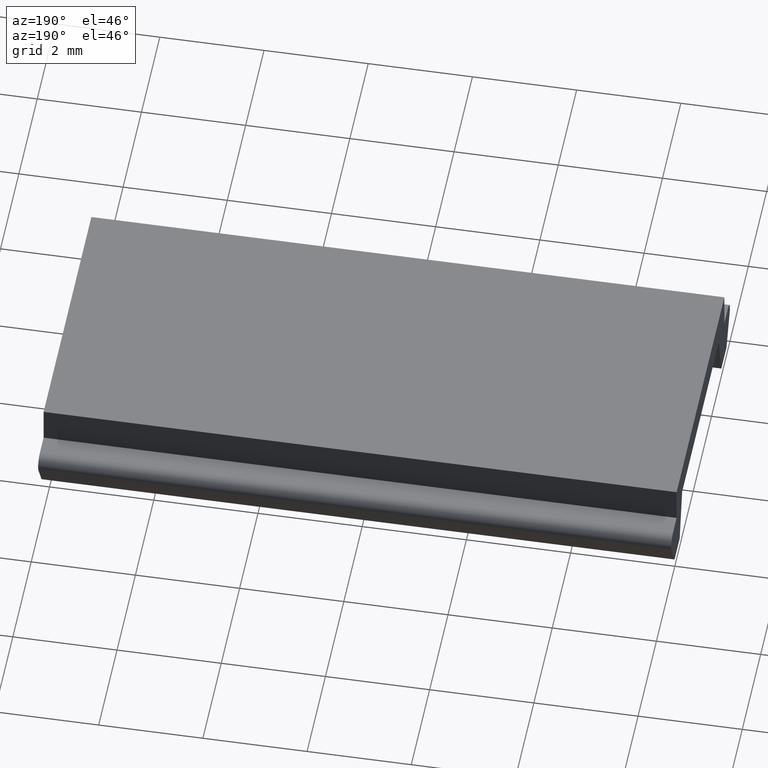
[diagram: clean part render]
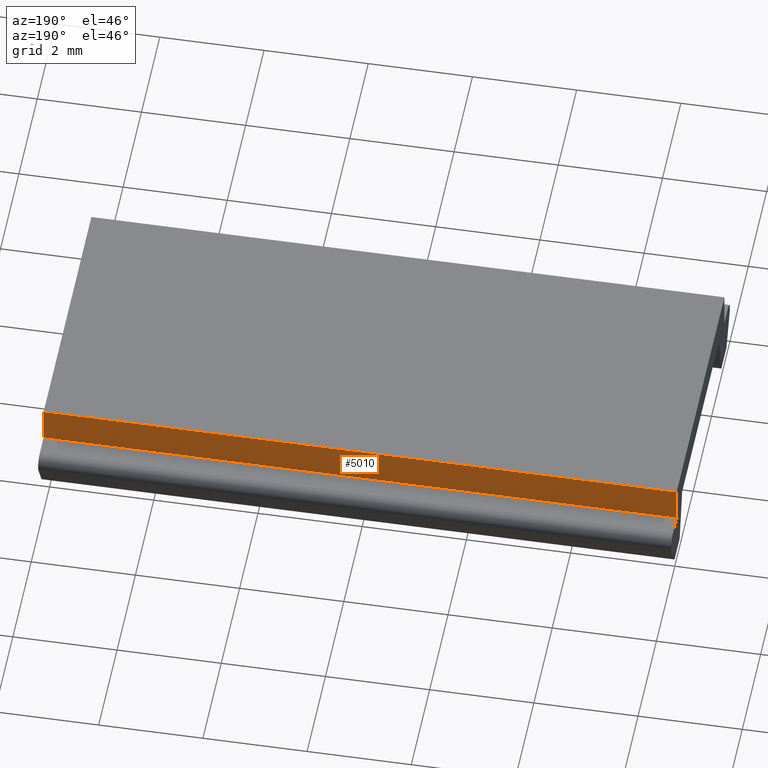
[diagram: same view with one face highlighted and labeled with its STEP entity id]
A machine part, auxiliary view. The second image highlights one B-rep face of the part: STEP entity #5010.
In plain terms, the highlighted planar face has unit normal (-0, -1, 0).
Its self-contained STEP definition (entity closure, byte-faithful):
#940=CARTESIAN_POINT('',(0.598817962288826,-2.,0.900000000002109));
#950=VERTEX_POINT('',#940);
#980=CARTESIAN_POINT('',(0.598817962288898,-2.,0.832222488919884));
#990=DIRECTION('',(1.06326059068351E-12,-3.63756209204566E-61,-1.));
#1000=VECTOR('',#990,1.);
#1010=LINE('',#980,#1000);
#1020=CARTESIAN_POINT('',(0.598817962288082,-2.,1.59999999999953));
#1030=VERTEX_POINT('',#1020);
#1040=EDGE_CURVE('',#1030,#950,#1010,.T.);
#1490=CARTESIAN_POINT('',(0.598817962288082,10.15,1.59999999999953));
#1500=VERTEX_POINT('',#1490);
#1530=CARTESIAN_POINT('',(0.598817962288898,10.15,0.832222488919884));
#1540=DIRECTION('',(1.06326059068351E-12,-3.63756209204566E-61,-1.));
#1550=VECTOR('',#1540,1.);
#1560=LINE('',#1530,#1550);
#1570=CARTESIAN_POINT('',(0.598817962288826,10.15,0.900000000002109));
#1580=VERTEX_POINT('',#1570);
#1590=EDGE_CURVE('',#1500,#1580,#1560,.T.);
#3440=CARTESIAN_POINT('',(0.598817962288826,-4.60862263640039E-49,
0.900000000002108));
#3450=DIRECTION('',(-3.42113882891801E-49,-1.,0.));
#3460=VECTOR('',#3450,1.);
#3470=LINE('',#3440,#3460);
#3480=EDGE_CURVE('',#1580,#950,#3470,.T.);
#4850=CARTESIAN_POINT('',(0.598817962288614,-4.60862263639967E-49,
1.09999999999973));
#4860=DIRECTION('',(1.,-3.42113882891801E-49,1.06326059068351E-12));
#4870=DIRECTION('',(1.06326059068351E-12,-3.63756209204566E-61,-1.));
#4880=AXIS2_PLACEMENT_3D('',#4850,#4860,#4870);
#4890=PLANE('',#4880);
#4900=ORIENTED_EDGE('',*,*,#1040,.F.);
#4910=ORIENTED_EDGE('',*,*,#3480,.T.);
#4920=ORIENTED_EDGE('',*,*,#1590,.T.);
#4930=CARTESIAN_POINT('',(0.598817962288082,-4.60862263639785E-49,
1.59999999999953));
#4940=DIRECTION('',(-3.42113882891801E-49,-1.,0.));
#4950=VECTOR('',#4940,1.);
#4960=LINE('',#4930,#4950);
#4970=EDGE_CURVE('',#1500,#1030,#4960,.T.);
#4980=ORIENTED_EDGE('',*,*,#4970,.F.);
#4990=EDGE_LOOP('',(#4980,#4920,#4910,#4900));
#5000=FACE_OUTER_BOUND('',#4990,.T.);
#5010=ADVANCED_FACE('',(#5000),#4890,.F.);